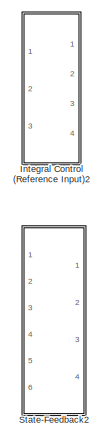
[diagram: root canvas - part 1/5, top left region]
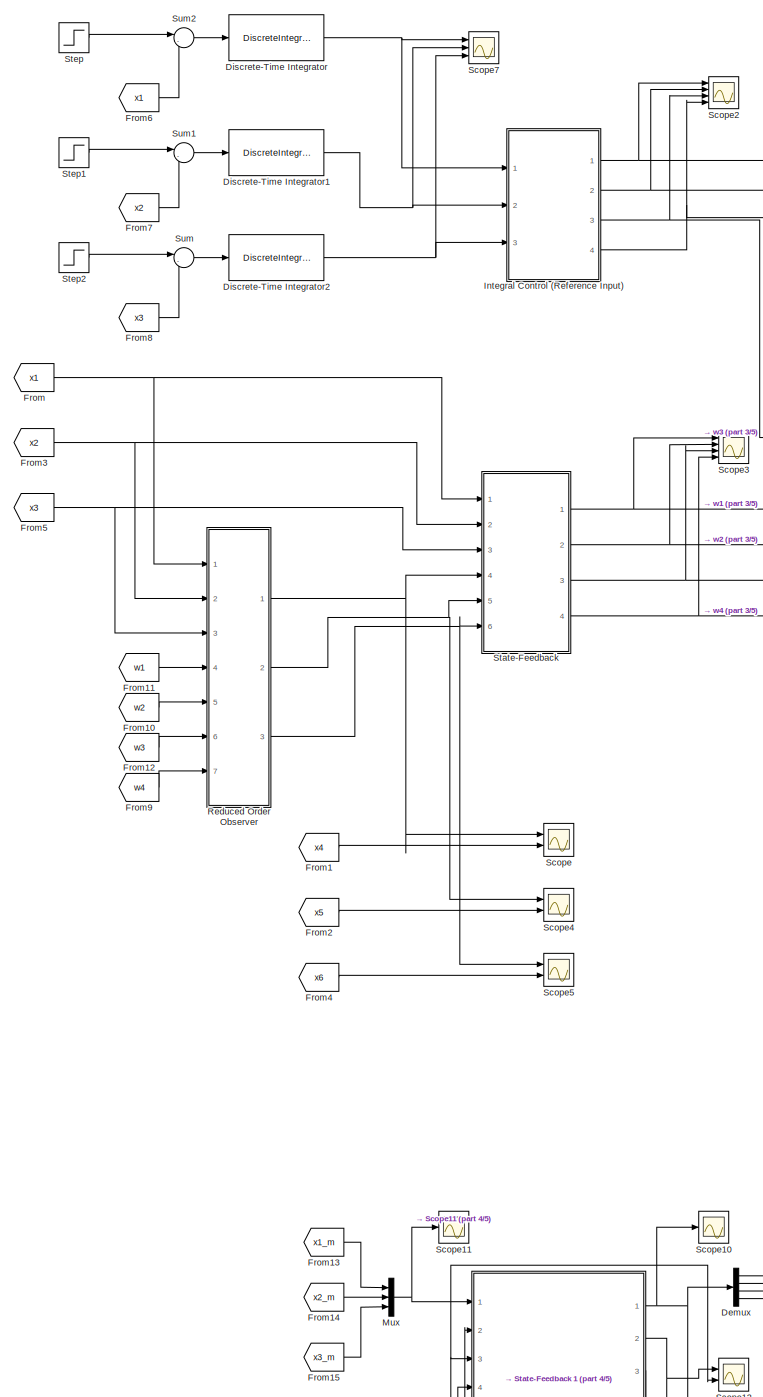
[diagram: root canvas - part 2/5, left side, full height]
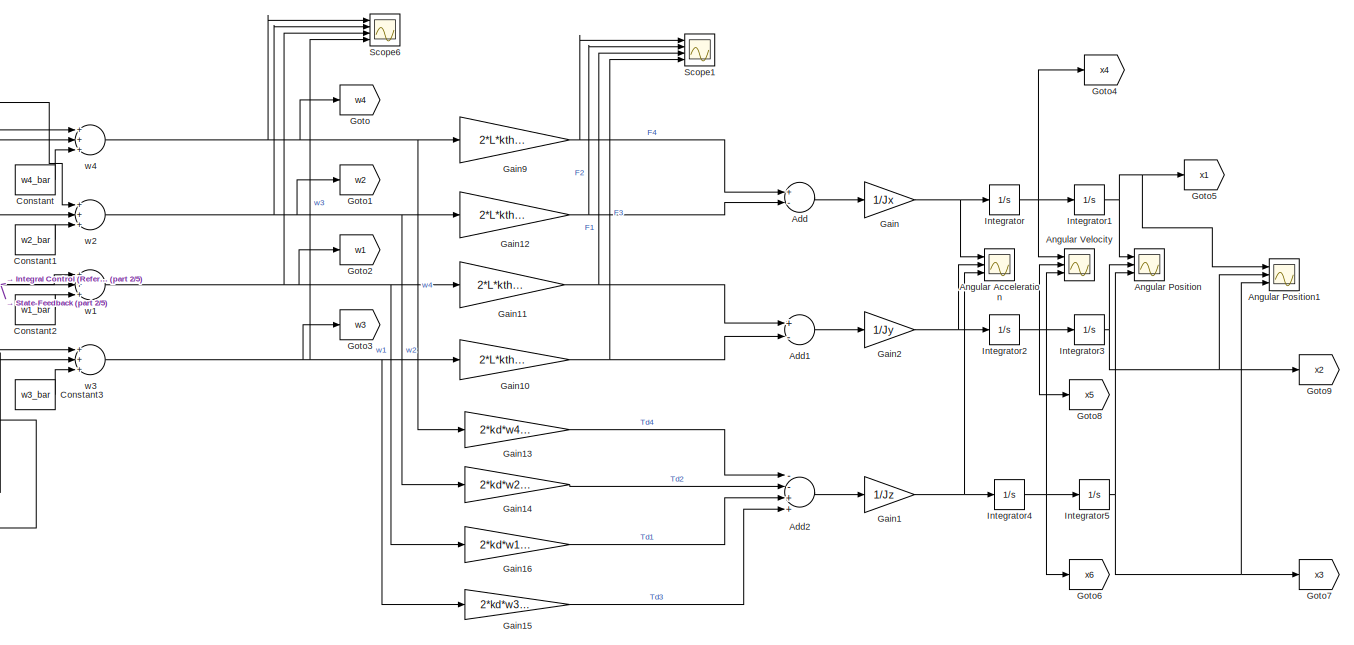
[diagram: root canvas - part 3/5, top right region]
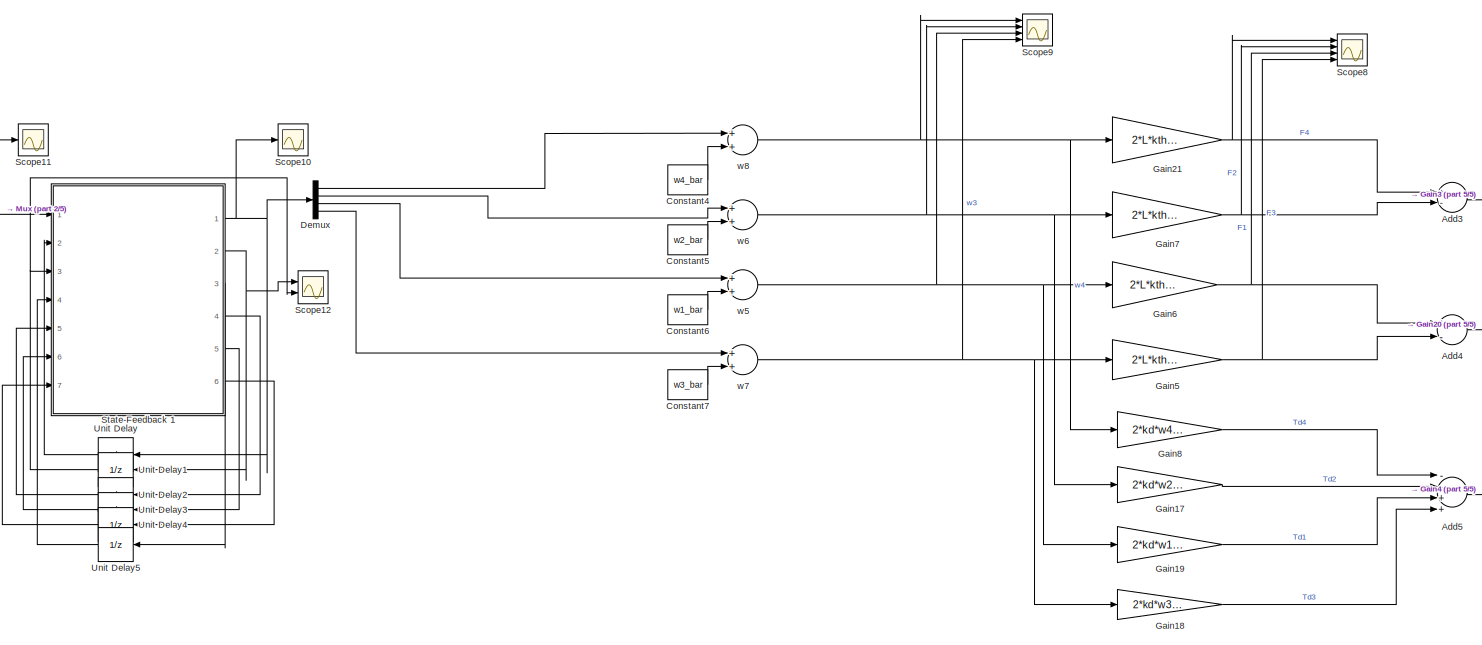
[diagram: root canvas - part 4/5, bottom center region]
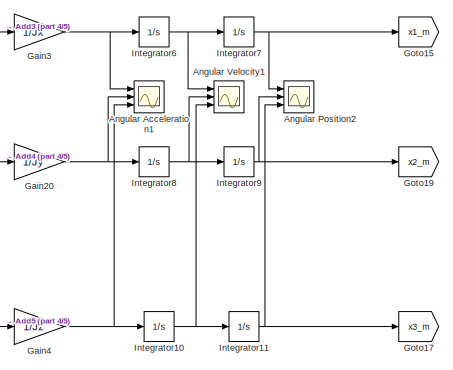
[diagram: root canvas - part 5/5, bottom right region]
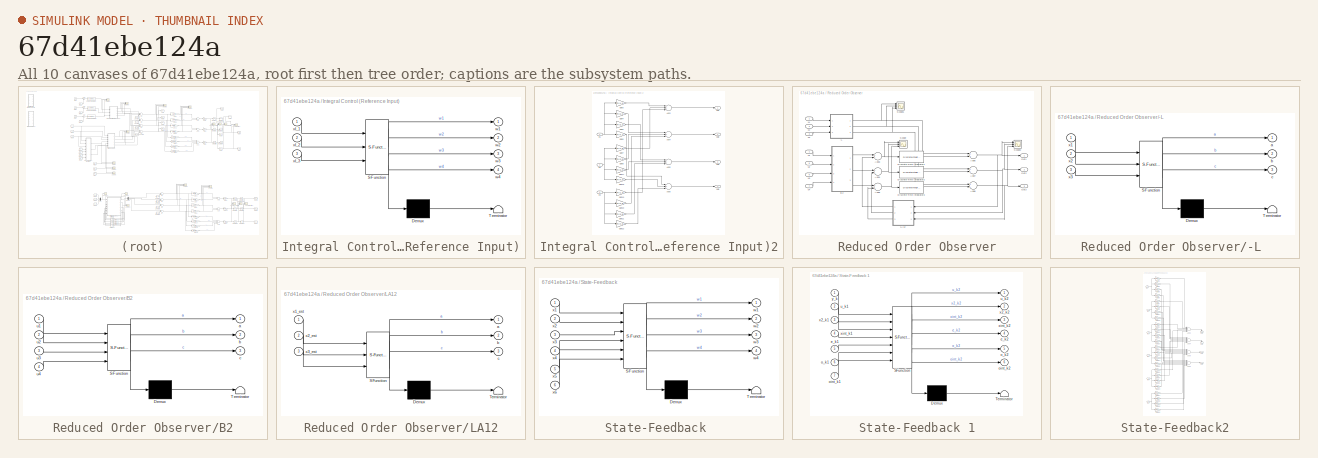
[diagram: thumbnail index - all 10 canvases of the model, root first then tree order]
MODEL slx_67d41ebe124a
KIND model
CONFIG AbsTol = auto
CONFIG FixedStep = auto
CONFIG MaxStep = auto
CONFIG MinStep = auto
CONFIG RelTol = 1e-3
CONFIG SampleTimeConstraint = Unconstrained
CONFIG Solver = VariableStepAuto
CONFIG SolverMode = Auto
CONFIG SolverName = VariableStepAuto
CONFIG StartTime = 0.0
CONFIG StopTime = 20
BLOCK [Sum] Add
  Commented = on
  InputSameDT = off
  Inputs = +-
  OutDataTypeStr = Inherit: Inherit via internal rule
  Ports = [2, 1]
  SaturateOnIntegerOverflow = off
BLOCK [Sum] Add1
  Commented = on
  InputSameDT = off
  Inputs = +-
  OutDataTypeStr = Inherit: Inherit via internal rule
  Ports = [2, 1]
  SaturateOnIntegerOverflow = off
BLOCK [Sum] Add2
  Commented = on
  InputSameDT = off
  Inputs = --++
  OutDataTypeStr = Inherit: Inherit via internal rule
  Ports = [4, 1]
  SaturateOnIntegerOverflow = off
BLOCK [Sum] Add3
  InputSameDT = off
  Inputs = +-
  OutDataTypeStr = Inherit: Inherit via internal rule
  Ports = [2, 1]
  SaturateOnIntegerOverflow = off
BLOCK [Sum] Add4
  InputSameDT = off
  Inputs = +-
  OutDataTypeStr = Inherit: Inherit via internal rule
  Ports = [2, 1]
  SaturateOnIntegerOverflow = off
BLOCK [Sum] Add5
  InputSameDT = off
  Inputs = --++
  OutDataTypeStr = Inherit: Inherit via internal rule
  Ports = [4, 1]
  SaturateOnIntegerOverflow = off
BLOCK [Scope] Angular Acceleration
  Commented = on
  NumInputPorts = 3
  Ports = [3]
  ScopeSpecificationString = Simulink.scopes.TimeScopeBlockCfg('CurrentConfiguration', extmgr.ConfigurationSet(extmgr.Configuration('Core','General UI',true),extmgr.Configuration('Core','Source UI',true),extmgr.Configuration('Sources','WiredSimulink',true,'DataLoggingVariableName','ScopeData3','DataLoggingLimitDataPoints',true,'DataLoggingSaveFormat','Array','DataLoggingDecimation','1','DataLoggingDecimateData',true),extmgr.C...<+1535ch>
BLOCK [Scope] Angular Acceleration1
  NumInputPorts = 3
  Ports = [3]
  ScopeSpecificationString = C++SS(StrPVP('SaveName','ScopeData4'))
BLOCK [Scope] Angular Position
  Commented = on
  NumInputPorts = 3
  Ports = [3]
  ScopeSpecificationString = Simulink.scopes.TimeScopeBlockCfg('CurrentConfiguration', extmgr.ConfigurationSet(extmgr.Configuration('Core','General UI',true),extmgr.Configuration('Core','Source UI',true),extmgr.Configuration('Sources','WiredSimulink',true,'DataLoggingVariableName','ScopeData1','DataLoggingSaveFormat','Array','DataLoggingDecimation','1','DataLoggingDecimateData',true),extmgr.Configuration('Visuals','Time Domai...<+1579ch>
BLOCK [Scope] Angular Position1
  Commented = on
  NumInputPorts = 3
  Ports = [3]
  ScopeSpecificationString = Simulink.scopes.TimeScopeBlockCfg('CurrentConfiguration', extmgr.ConfigurationSet(extmgr.Configuration('Core','General UI',true),extmgr.Configuration('Core','Source UI',true),extmgr.Configuration('Sources','WiredSimulink',true,'DataLoggingVariableName','ScopeData1','DataLoggingSaveFormat','Array','DataLoggingDecimation','1','DataLoggingDecimateData',true),extmgr.Configuration('Visuals','Time Domai...<+1585ch>
BLOCK [Scope] Angular Position2
  NumInputPorts = 3
  Ports = [3]
  ScopeSpecificationString = Simulink.scopes.TimeScopeBlockCfg('CurrentConfiguration', extmgr.ConfigurationSet(extmgr.Configuration('Core','General UI',true),extmgr.Configuration('Core','Source UI',true),extmgr.Configuration('Sources','WiredSimulink',true,'DataLoggingVariableName','ScopeData1'),extmgr.Configuration('Visuals','Time Domain',true,'SerializedDisplays',{struct('MinYLimReal','-76992271705441440000000000000000000000...<+2184ch>
BLOCK [Scope] Angular Velocity
  Commented = on
  NumInputPorts = 3
  Ports = [3]
  ScopeSpecificationString = Simulink.scopes.TimeScopeBlockCfg('CurrentConfiguration', extmgr.ConfigurationSet(extmgr.Configuration('Core','General UI',true),extmgr.Configuration('Core','Source UI',true),extmgr.Configuration('Sources','WiredSimulink',true,'DataLoggingVariableName','ScopeData2','DataLoggingLimitDataPoints',true,'DataLoggingSaveFormat','Array','DataLoggingDecimation','1','DataLoggingDecimateData',true),extmgr.C...<+3052ch>
BLOCK [Scope] Angular Velocity1
  NumInputPorts = 3
  Ports = [3]
  ScopeSpecificationString = C++SS(StrPVP('SaveName','ScopeData3'))
BLOCK [Constant] Constant
  Commented = on
  Value = w4_bar
BLOCK [Constant] Constant1
  Commented = on
  Value = w2_bar
BLOCK [Constant] Constant2
  Commented = on
  Value = w1_bar
BLOCK [Constant] Constant3
  Commented = on
  Value = w3_bar
BLOCK [Constant] Constant4
  Value = w4_bar
BLOCK [Constant] Constant5
  Value = w2_bar
BLOCK [Constant] Constant6
  Value = w1_bar
BLOCK [Constant] Constant7
  Value = w3_bar
BLOCK [Demux] Demux
  DisplayOption = bar
  Ports = [1, 4]
BLOCK [DiscreteIntegrator] Discrete-Time Integrator
  Commented = on
  ICPrevOutput = DiscIntNeverNeededParam
  ICPrevScaledInput = DiscIntNeverNeededParam
  InitialConditionSetting = State (most efficient)
  IntegratorMethod = Integration: Trapezoidal
  Ports = [1, 1]
  SampleTime = 0.05
  gainval = 1
BLOCK [DiscreteIntegrator] Discrete-Time Integrator1
  Commented = on
  ICPrevOutput = DiscIntNeverNeededParam
  ICPrevScaledInput = DiscIntNeverNeededParam
  InitialConditionSetting = State (most efficient)
  IntegratorMethod = Integration: Trapezoidal
  Ports = [1, 1]
  SampleTime = 0.05
  gainval = 1
BLOCK [DiscreteIntegrator] Discrete-Time Integrator2
  Commented = on
  ICPrevOutput = DiscIntNeverNeededParam
  ICPrevScaledInput = DiscIntNeverNeededParam
  InitialConditionSetting = State (most efficient)
  IntegratorMethod = Integration: Trapezoidal
  Ports = [1, 1]
  SampleTime = 0.05
  gainval = 1
BLOCK [From] From
  Commented = on
  GotoTag = x1
BLOCK [From] From1
  Commented = on
  GotoTag = x4
BLOCK [From] From10
  Commented = on
  GotoTag = w2
BLOCK [From] From11
  Commented = on
  GotoTag = w1
BLOCK [From] From12
  Commented = on
  GotoTag = w3
BLOCK [From] From13
  GotoTag = x1_m
BLOCK [From] From14
  GotoTag = x2_m
BLOCK [From] From15
  GotoTag = x3_m
BLOCK [From] From2
  Commented = on
  GotoTag = x5
BLOCK [From] From3
  Commented = on
  GotoTag = x2
BLOCK [From] From4
  Commented = on
  GotoTag = x6
BLOCK [From] From5
  Commented = on
  GotoTag = x3
BLOCK [From] From6
  Commented = on
  GotoTag = x1
BLOCK [From] From7
  Commented = on
  GotoTag = x2
BLOCK [From] From8
  Commented = on
  GotoTag = x3
BLOCK [From] From9
  Commented = on
  GotoTag = w4
BLOCK [Gain] Gain
  Commented = on
  Gain = 1/Jx
  OutDataTypeStr = Inherit: Inherit via internal rule
  ParamDataTypeStr = Inherit: Inherit via internal rule
  SaturateOnIntegerOverflow = off
BLOCK [Gain] Gain1
  Commented = on
  Gain = 1/Jz
  OutDataTypeStr = Inherit: Inherit via internal rule
  ParamDataTypeStr = Inherit: Inherit via internal rule
  SaturateOnIntegerOverflow = off
BLOCK [Gain] Gain10
  Commented = on
  Gain = 2*L*kth*w3_bar
  OutDataTypeStr = Inherit: Inherit via internal rule
  ParamDataTypeStr = Inherit: Inherit via internal rule
  SaturateOnIntegerOverflow = off
BLOCK [Gain] Gain11
  Commented = on
  Gain = 2*L*kth*w1_bar
  OutDataTypeStr = Inherit: Inherit via internal rule
  ParamDataTypeStr = Inherit: Inherit via internal rule
  SaturateOnIntegerOverflow = off
BLOCK [Gain] Gain12
  Commented = on
  Gain = 2*L*kth*w2_bar
  OutDataTypeStr = Inherit: Inherit via internal rule
  ParamDataTypeStr = Inherit: Inherit via internal rule
  SaturateOnIntegerOverflow = off
BLOCK [Gain] Gain13
  Commented = on
  Gain = 2*kd*w4_bar
  OutDataTypeStr = Inherit: Inherit via internal rule
  ParamDataTypeStr = Inherit: Inherit via internal rule
  SaturateOnIntegerOverflow = off
BLOCK [Gain] Gain14
  Commented = on
  Gain = 2*kd*w2_bar
  OutDataTypeStr = Inherit: Inherit via internal rule
  ParamDataTypeStr = Inherit: Inherit via internal rule
  SaturateOnIntegerOverflow = off
BLOCK [Gain] Gain15
  Commented = on
  Gain = 2*kd*w3_bar
  OutDataTypeStr = Inherit: Inherit via internal rule
  ParamDataTypeStr = Inherit: Inherit via internal rule
  SaturateOnIntegerOverflow = off
BLOCK [Gain] Gain16
  Commented = on
  Gain = 2*kd*w1_bar
  OutDataTypeStr = Inherit: Inherit via internal rule
  ParamDataTypeStr = Inherit: Inherit via internal rule
  SaturateOnIntegerOverflow = off
BLOCK [Gain] Gain17
  Gain = 2*kd*w2_bar
  OutDataTypeStr = Inherit: Inherit via internal rule
  ParamDataTypeStr = Inherit: Inherit via internal rule
  SaturateOnIntegerOverflow = off
BLOCK [Gain] Gain18
  Gain = 2*kd*w3_bar
  OutDataTypeStr = Inherit: Inherit via internal rule
  ParamDataTypeStr = Inherit: Inherit via internal rule
  SaturateOnIntegerOverflow = off
BLOCK [Gain] Gain19
  Gain = 2*kd*w1_bar
  OutDataTypeStr = Inherit: Inherit via internal rule
  ParamDataTypeStr = Inherit: Inherit via internal rule
  SaturateOnIntegerOverflow = off
BLOCK [Gain] Gain2
  Commented = on
  Gain = 1/Jy
  OutDataTypeStr = Inherit: Inherit via internal rule
  ParamDataTypeStr = Inherit: Inherit via internal rule
  SaturateOnIntegerOverflow = off
BLOCK [Gain] Gain20
  Gain = 1/Jy
  OutDataTypeStr = Inherit: Inherit via internal rule
  ParamDataTypeStr = Inherit: Inherit via internal rule
  SaturateOnIntegerOverflow = off
BLOCK [Gain] Gain21
  Gain = 2*L*kth*w4_bar
  OutDataTypeStr = Inherit: Inherit via internal rule
  ParamDataTypeStr = Inherit: Inherit via internal rule
  SaturateOnIntegerOverflow = off
BLOCK [Gain] Gain3
  Gain = 1/Jx
  OutDataTypeStr = Inherit: Inherit via internal rule
  ParamDataTypeStr = Inherit: Inherit via internal rule
  SaturateOnIntegerOverflow = off
BLOCK [Gain] Gain4
  Gain = 1/Jz
  OutDataTypeStr = Inherit: Inherit via internal rule
  ParamDataTypeStr = Inherit: Inherit via internal rule
  SaturateOnIntegerOverflow = off
BLOCK [Gain] Gain5
  Gain = 2*L*kth*w3_bar
  OutDataTypeStr = Inherit: Inherit via internal rule
  ParamDataTypeStr = Inherit: Inherit via internal rule
  SaturateOnIntegerOverflow = off
BLOCK [Gain] Gain6
  Gain = 2*L*kth*w1_bar
  OutDataTypeStr = Inherit: Inherit via internal rule
  ParamDataTypeStr = Inherit: Inherit via internal rule
  SaturateOnIntegerOverflow = off
BLOCK [Gain] Gain7
  Gain = 2*L*kth*w2_bar
  OutDataTypeStr = Inherit: Inherit via internal rule
  ParamDataTypeStr = Inherit: Inherit via internal rule
  SaturateOnIntegerOverflow = off
BLOCK [Gain] Gain8
  Gain = 2*kd*w4_bar
  OutDataTypeStr = Inherit: Inherit via internal rule
  ParamDataTypeStr = Inherit: Inherit via internal rule
  SaturateOnIntegerOverflow = off
BLOCK [Gain] Gain9
  Commented = on
  Gain = 2*L*kth*w4_bar
  OutDataTypeStr = Inherit: Inherit via internal rule
  ParamDataTypeStr = Inherit: Inherit via internal rule
  SaturateOnIntegerOverflow = off
BLOCK [Goto] Goto
  Commented = on
  GotoTag = w4
BLOCK [Goto] Goto1
  Commented = on
  GotoTag = w2
BLOCK [Goto] Goto15
  GotoTag = x1_m
BLOCK [Goto] Goto17
  GotoTag = x3_m
BLOCK [Goto] Goto19
  GotoTag = x2_m
BLOCK [Goto] Goto2
  Commented = on
  GotoTag = w1
BLOCK [Goto] Goto3
  Commented = on
  GotoTag = w3
BLOCK [Goto] Goto4
  Commented = on
  GotoTag = x4
BLOCK [Goto] Goto5
  Commented = on
  GotoTag = x1
BLOCK [Goto] Goto6
  Commented = on
  GotoTag = x6
BLOCK [Goto] Goto7
  Commented = on
  GotoTag = x3
BLOCK [Goto] Goto8
  Commented = on
  GotoTag = x5
BLOCK [Goto] Goto9
  Commented = on
  GotoTag = x2
BLOCK [SubSystem] Integral Control (Reference Input)
  Commented = on
  ErrorFcn = Stateflow.Translate.translate
  PermitHierarchicalResolution = ExplicitOnly
  Ports = [3, 4]
  RequestExecContextInheritance = off
  SFBlockType = MATLAB Function
  TreatAsAtomicUnit = on
  Variant = off
BLOCK [Demux] Integral Control (Reference Input)/ Demux 
  Outputs = 1
  Ports = [1, 1]
BLOCK [S-Function] Integral Control (Reference Input)/ SFunction 
  EnableBusSupport = on
  FunctionName = sf_sfun
  Parameters = FI
  PortCounts = [3 5]
  Ports = [3, 5]
  SFunctionDeploymentMode = off
  Tag = Stateflow S-Function state_feedback 2
BLOCK [Terminator] Integral Control (Reference Input)/ Terminator 
BLOCK [Outport] Integral Control (Reference Input)/w1
  IconDisplay = Port number
BLOCK [Outport] Integral Control (Reference Input)/w2
  IconDisplay = Port number
  Port = 2
BLOCK [Outport] Integral Control (Reference Input)/w3
  IconDisplay = Port number
  Port = 3
BLOCK [Outport] Integral Control (Reference Input)/w4
  IconDisplay = Port number
  Port = 4
BLOCK [Inport] Integral Control (Reference Input)/xI_1
  IconDisplay = Port number
BLOCK [Inport] Integral Control (Reference Input)/xI_2
  IconDisplay = Port number
  Port = 2
BLOCK [Inport] Integral Control (Reference Input)/xI_3
  IconDisplay = Port number
  Port = 3
BLOCK [SubSystem] Integral Control (Reference Input)2
  Commented = on
  Ports = [3, 4]
  RequestExecContextInheritance = off
  Variant = off
BLOCK [Sum] Integral Control (Reference Input)2/Add3
  InputSameDT = off
  Inputs = +++
  OutDataTypeStr = Inherit: Inherit via internal rule
  Ports = [3, 1]
  SaturateOnIntegerOverflow = off
BLOCK [Sum] Integral Control (Reference Input)2/Add4
  InputSameDT = off
  Inputs = +++
  OutDataTypeStr = Inherit: Inherit via internal rule
  Ports = [3, 1]
  SaturateOnIntegerOverflow = off
BLOCK [Sum] Integral Control (Reference Input)2/Add5
  InputSameDT = off
  Inputs = +++
  OutDataTypeStr = Inherit: Inherit via internal rule
  Ports = [3, 1]
  SaturateOnIntegerOverflow = off
BLOCK [Sum] Integral Control (Reference Input)2/Add6
  InputSameDT = off
  Inputs = +++
  OutDataTypeStr = Inherit: Inherit via internal rule
  Ports = [3, 1]
  SaturateOnIntegerOverflow = off
BLOCK [Gain] Integral Control (Reference Input)2/Gain17
  Gain = FI(3,2)
  OutDataTypeStr = Inherit: Inherit via internal rule
  ParamDataTypeStr = Inherit: Inherit via internal rule
  SaturateOnIntegerOverflow = off
BLOCK [Gain] Integral Control (Reference Input)2/Gain18
  Gain = FI(4,2)
  OutDataTypeStr = Inherit: Inherit via internal rule
  ParamDataTypeStr = Inherit: Inherit via internal rule
  SaturateOnIntegerOverflow = off
BLOCK [Gain] Integral Control (Reference Input)2/Gain19
  Gain = FI(1,3)
  OutDataTypeStr = Inherit: Inherit via internal rule
  ParamDataTypeStr = Inherit: Inherit via internal rule
  SaturateOnIntegerOverflow = off
BLOCK [Gain] Integral Control (Reference Input)2/Gain20
  Gain = FI(2,3)
  OutDataTypeStr = Inherit: Inherit via internal rule
  ParamDataTypeStr = Inherit: Inherit via internal rule
  SaturateOnIntegerOverflow = off
BLOCK [Gain] Integral Control (Reference Input)2/Gain21
  Gain = FI(3,3)
  OutDataTypeStr = Inherit: Inherit via internal rule
  ParamDataTypeStr = Inherit: Inherit via internal rule
  SaturateOnIntegerOverflow = off
BLOCK [Gain] Integral Control (Reference Input)2/Gain22
  Gain = FI(4,3)
  OutDataTypeStr = Inherit: Inherit via internal rule
  ParamDataTypeStr = Inherit: Inherit via internal rule
  SaturateOnIntegerOverflow = off
BLOCK [Gain] Integral Control (Reference Input)2/Gain3
  Gain = FI(1,1)
  OutDataTypeStr = Inherit: Inherit via internal rule
  ParamDataTypeStr = Inherit: Inherit via internal rule
  SaturateOnIntegerOverflow = off
BLOCK [Gain] Integral Control (Reference Input)2/Gain4
  Gain = FI(2,1)
  OutDataTypeStr = Inherit: Inherit via internal rule
  ParamDataTypeStr = Inherit: Inherit via internal rule
  SaturateOnIntegerOverflow = off
BLOCK [Gain] Integral Control (Reference Input)2/Gain5
  Gain = FI(3,1)
  OutDataTypeStr = Inherit: Inherit via internal rule
  ParamDataTypeStr = Inherit: Inherit via internal rule
  SaturateOnIntegerOverflow = off
BLOCK [Gain] Integral Control (Reference Input)2/Gain6
  Gain = FI(4,1)
  OutDataTypeStr = Inherit: Inherit via internal rule
  ParamDataTypeStr = Inherit: Inherit via internal rule
  SaturateOnIntegerOverflow = off
BLOCK [Gain] Integral Control (Reference Input)2/Gain7
  Gain = FI(1,2)
  OutDataTypeStr = Inherit: Inherit via internal rule
  ParamDataTypeStr = Inherit: Inherit via internal rule
  SaturateOnIntegerOverflow = off
BLOCK [Gain] Integral Control (Reference Input)2/Gain8
  Gain = FI(2,2)
  OutDataTypeStr = Inherit: Inherit via internal rule
  ParamDataTypeStr = Inherit: Inherit via internal rule
  SaturateOnIntegerOverflow = off
BLOCK [Inport] Integral Control (Reference Input)2/In1
  IconDisplay = Port number
BLOCK [Inport] Integral Control (Reference Input)2/In2
  IconDisplay = Port number
  Port = 2
BLOCK [Inport] Integral Control (Reference Input)2/In3
  IconDisplay = Port number
  Port = 3
BLOCK [Outport] Integral Control (Reference Input)2/Out1
  IconDisplay = Port number
BLOCK [Outport] Integral Control (Reference Input)2/Out2
  IconDisplay = Port number
  Port = 2
BLOCK [Outport] Integral Control (Reference Input)2/Out3
  IconDisplay = Port number
  Port = 3
BLOCK [Outport] Integral Control (Reference Input)2/Out4
  IconDisplay = Port number
  Port = 4
BLOCK [Integrator] Integrator
  Commented = on
  Ports = [1, 1]
BLOCK [Integrator] Integrator1
  Commented = on
  InitialCondition = 0.4
  Ports = [1, 1]
BLOCK [Integrator] Integrator10
  Ports = [1, 1]
BLOCK [Integrator] Integrator11
  Ports = [1, 1]
BLOCK [Integrator] Integrator2
  Commented = on
  Ports = [1, 1]
BLOCK [Integrator] Integrator3
  Commented = on
  Ports = [1, 1]
BLOCK [Integrator] Integrator4
  Commented = on
  Ports = [1, 1]
BLOCK [Integrator] Integrator5
  Commented = on
  Ports = [1, 1]
BLOCK [Integrator] Integrator6
  Ports = [1, 1]
BLOCK [Integrator] Integrator7
  InitialCondition = 0.005
  Ports = [1, 1]
BLOCK [Integrator] Integrator8
  Ports = [1, 1]
BLOCK [Integrator] Integrator9
  Ports = [1, 1]
BLOCK [Mux] Mux
  DisplayOption = bar
  Inputs = 3
  Ports = [3, 1]
BLOCK [SubSystem] Reduced Order Observer
  Commented = on
  Ports = [7, 3]
  RequestExecContextInheritance = off
  Variant = off
BLOCK [SubSystem] Reduced Order Observer/-L 
  ErrorFcn = Stateflow.Translate.translate
  PermitHierarchicalResolution = ExplicitOnly
  Ports = [3, 3]
  RequestExecContextInheritance = off
  SFBlockType = MATLAB Function
  TreatAsAtomicUnit = on
  Variant = off
BLOCK [Demux] Reduced Order Observer/-L / Demux 
  Outputs = 1
  Ports = [1, 1]
BLOCK [S-Function] Reduced Order Observer/-L / SFunction 
  EnableBusSupport = on
  FunctionName = sf_sfun
  Parameters = Lobs
  PortCounts = [3 4]
  Ports = [3, 4]
  SFunctionDeploymentMode = off
  Tag = Stateflow S-Function state_feedback 3
BLOCK [Terminator] Reduced Order Observer/-L / Terminator 
BLOCK [Outport] Reduced Order Observer/-L /a
  IconDisplay = Port number
BLOCK [Outport] Reduced Order Observer/-L /b
  IconDisplay = Port number
  Port = 2
BLOCK [Outport] Reduced Order Observer/-L /c
  IconDisplay = Port number
  Port = 3
BLOCK [Inport] Reduced Order Observer/-L /x1
  IconDisplay = Port number
BLOCK [Inport] Reduced Order Observer/-L /x2
  IconDisplay = Port number
  Port = 2
BLOCK [Inport] Reduced Order Observer/-L /x3
  IconDisplay = Port number
  Port = 3
BLOCK [Sum] Reduced Order Observer/Add3
  InputSameDT = off
  Inputs = 2
  OutDataTypeStr = Inherit: Inherit via internal rule
  Ports = [2, 1]
  SaturateOnIntegerOverflow = off
BLOCK [Sum] Reduced Order Observer/Add4
  InputSameDT = off
  Inputs = 2
  OutDataTypeStr = Inherit: Inherit via internal rule
  Ports = [2, 1]
  SaturateOnIntegerOverflow = off
BLOCK [Sum] Reduced Order Observer/Add5
  InputSameDT = off
  Inputs = 2
  OutDataTypeStr = Inherit: Inherit via internal rule
  Ports = [2, 1]
  SaturateOnIntegerOverflow = off
BLOCK [Sum] Reduced Order Observer/Add6
  InputSameDT = off
  Inputs = 2
  OutDataTypeStr = Inherit: Inherit via internal rule
  Ports = [2, 1]
  SaturateOnIntegerOverflow = off
BLOCK [Sum] Reduced Order Observer/Add7
  InputSameDT = off
  Inputs = 2
  OutDataTypeStr = Inherit: Inherit via internal rule
  Ports = [2, 1]
  SaturateOnIntegerOverflow = off
BLOCK [Sum] Reduced Order Observer/Add8
  InputSameDT = off
  Inputs = 2
  OutDataTypeStr = Inherit: Inherit via internal rule
  Ports = [2, 1]
  SaturateOnIntegerOverflow = off
BLOCK [SubSystem] Reduced Order Observer/B2
  ErrorFcn = Stateflow.Translate.translate
  PermitHierarchicalResolution = ExplicitOnly
  Ports = [4, 3]
  RequestExecContextInheritance = off
  SFBlockType = MATLAB Function
  TreatAsAtomicUnit = on
  Variant = off
BLOCK [Demux] Reduced Order Observer/B2/ Demux 
  Outputs = 1
  Ports = [1, 1]
BLOCK [S-Function] Reduced Order Observer/B2/ SFunction 
  EnableBusSupport = on
  FunctionName = sf_sfun
  Parameters = B2
  PortCounts = [4 4]
  Ports = [4, 4]
  SFunctionDeploymentMode = off
  Tag = Stateflow S-Function state_feedback 4
BLOCK [Terminator] Reduced Order Observer/B2/ Terminator 
BLOCK [Outport] Reduced Order Observer/B2/a
  IconDisplay = Port number
BLOCK [Outport] Reduced Order Observer/B2/b
  IconDisplay = Port number
  Port = 2
BLOCK [Outport] Reduced Order Observer/B2/c
  IconDisplay = Port number
  Port = 3
BLOCK [Inport] Reduced Order Observer/B2/u1
  IconDisplay = Port number
BLOCK [Inport] Reduced Order Observer/B2/u2
  IconDisplay = Port number
  Port = 2
BLOCK [Inport] Reduced Order Observer/B2/u3
  IconDisplay = Port number
  Port = 3
BLOCK [Inport] Reduced Order Observer/B2/u4
  IconDisplay = Port number
  Port = 4
BLOCK [DiscreteIntegrator] Reduced Order Observer/Discrete-Time Integrator1
  ICPrevOutput = DiscIntNeverNeededParam
  ICPrevScaledInput = DiscIntNeverNeededParam
  InitialConditionSetting = State (most efficient)
  IntegratorMethod = Integration: Trapezoidal
  Ports = [1, 1]
  SampleTime = 0.05
  gainval = 1
BLOCK [DiscreteIntegrator] Reduced Order Observer/Discrete-Time Integrator2
  ICPrevOutput = DiscIntNeverNeededParam
  ICPrevScaledInput = DiscIntNeverNeededParam
  InitialConditionSetting = State (most efficient)
  IntegratorMethod = Integration: Trapezoidal
  Ports = [1, 1]
  SampleTime = 0.05
  gainval = 1
BLOCK [DiscreteIntegrator] Reduced Order Observer/Discrete-Time Integrator3
  ICPrevOutput = DiscIntNeverNeededParam
  ICPrevScaledInput = DiscIntNeverNeededParam
  InitialConditionSetting = State (most efficient)
  IntegratorMethod = Integration: Trapezoidal
  Ports = [1, 1]
  SampleTime = 0.05
  gainval = 1
BLOCK [SubSystem] Reduced Order Observer/LA12
  ErrorFcn = Stateflow.Translate.translate
  PermitHierarchicalResolution = ExplicitOnly
  Ports = [3, 3]
  RequestExecContextInheritance = off
  SFBlockType = MATLAB Function
  TreatAsAtomicUnit = on
  Variant = off
BLOCK [Demux] Reduced Order Observer/LA12/ Demux 
  Outputs = 1
  Ports = [1, 1]
BLOCK [S-Function] Reduced Order Observer/LA12/ SFunction 
  EnableBusSupport = on
  FunctionName = sf_sfun
  Parameters = A12,Lobs
  PortCounts = [3 4]
  Ports = [3, 4]
  SFunctionDeploymentMode = off
  Tag = Stateflow S-Function state_feedback 5
BLOCK [Terminator] Reduced Order Observer/LA12/ Terminator 
BLOCK [Outport] Reduced Order Observer/LA12/a
  IconDisplay = Port number
BLOCK [Outport] Reduced Order Observer/LA12/b
  IconDisplay = Port number
  Port = 2
BLOCK [Outport] Reduced Order Observer/LA12/c
  IconDisplay = Port number
  Port = 3
BLOCK [Inport] Reduced Order Observer/LA12/x1_est
  IconDisplay = Port number
BLOCK [Inport] Reduced Order Observer/LA12/x2_est
  IconDisplay = Port number
  Port = 2
BLOCK [Inport] Reduced Order Observer/LA12/x3_est
  IconDisplay = Port number
  Port = 3
BLOCK [Outport] Reduced Order Observer/Out1
  IconDisplay = Port number
BLOCK [Outport] Reduced Order Observer/Out2
  IconDisplay = Port number
  Port = 2
BLOCK [Outport] Reduced Order Observer/Out3
  IconDisplay = Port number
  Port = 3
BLOCK [Scope] Reduced Order Observer/Scope
  NumInputPorts = 3
  Ports = [3]
  ScopeSpecificationString = Simulink.scopes.TimeScopeBlockCfg('CurrentConfiguration', extmgr.ConfigurationSet(extmgr.Configuration('Core','General UI',true),extmgr.Configuration('Core','Source UI',true),extmgr.Configuration('Sources','WiredSimulink',true,'DataLoggingVariableName','ScopeData2'),extmgr.Configuration('Visuals','Time Domain',true,'SerializedDisplays',{struct('MinYLimReal','-0.00927','MaxYLimReal','0.08194','YLab...<+1431ch>
BLOCK [Scope] Reduced Order Observer/Scope1
  NumInputPorts = 3
  Ports = [3]
  ScopeSpecificationString = Simulink.scopes.TimeScopeBlockCfg('CurrentConfiguration', extmgr.ConfigurationSet(extmgr.Configuration('Core','General UI',true),extmgr.Configuration('Core','Source UI',true),extmgr.Configuration('Sources','WiredSimulink',true,'DataLoggingVariableName','ScopeData3'),extmgr.Configuration('Visuals','Time Domain',true,'SerializedDisplays',{struct('MinYLimReal','-0.00068','MaxYLimReal','0.00007','YLab...<+1434ch>
BLOCK [Scope] Reduced Order Observer/Scope2
  NumInputPorts = 3
  Ports = [3]
  ScopeSpecificationString = Simulink.scopes.TimeScopeBlockCfg('CurrentConfiguration', extmgr.ConfigurationSet(extmgr.Configuration('Core','General UI',true),extmgr.Configuration('Core','Source UI',true),extmgr.Configuration('Sources','WiredSimulink',true,'DataLoggingVariableName','ScopeData4'),extmgr.Configuration('Visuals','Time Domain',true,'SerializedDisplays',{struct('MinYLimReal','-0.18126','MaxYLimReal','1.47014','YLab...<+1430ch>
BLOCK [Inport] Reduced Order Observer/u1
  IconDisplay = Port number
  Port = 4
BLOCK [Inport] Reduced Order Observer/u2
  IconDisplay = Port number
  Port = 5
BLOCK [Inport] Reduced Order Observer/u3
  IconDisplay = Port number
  Port = 6
BLOCK [Inport] Reduced Order Observer/u4
  IconDisplay = Port number
  Port = 7
BLOCK [Inport] Reduced Order Observer/x1
  IconDisplay = Port number
BLOCK [Inport] Reduced Order Observer/x2
  IconDisplay = Port number
  Port = 2
BLOCK [Inport] Reduced Order Observer/x3
  IconDisplay = Port number
  Port = 3
BLOCK [Scope] Scope
  Commented = on
  NumInputPorts = 2
  Ports = [2]
  ScopeSpecificationString = Simulink.scopes.TimeScopeBlockCfg('CurrentConfiguration', extmgr.ConfigurationSet(extmgr.Configuration('Core','General UI',true),extmgr.Configuration('Core','Source UI',true),extmgr.Configuration('Sources','WiredSimulink',true,'DataLoggingVariableName','ScopeData3'),extmgr.Configuration('Visuals','Time Domain',true,'SerializedDisplays',{struct('MinYLimReal','-8.23683','MaxYLimReal','4.70735','YLab...<+1450ch>
BLOCK [Scope] Scope1
  Commented = on
  NumInputPorts = 4
  Ports = [4]
  ScopeSpecificationString = Simulink.scopes.TimeScopeBlockCfg('CurrentConfiguration', extmgr.ConfigurationSet(extmgr.Configuration('Core','General UI',true),extmgr.Configuration('Core','Source UI',true),extmgr.Configuration('Sources','WiredSimulink',true),extmgr.Configuration('Visuals','Time Domain',true,'SerializedDisplays',{struct('MinYLimReal','-17825574068553026000000000000000000000000000000000000000000000000000000000000...<+3827ch>
BLOCK [Scope] Scope10
  Ports = [1]
  ScopeSpecificationString = Simulink.scopes.TimeScopeBlockCfg('CurrentConfiguration', extmgr.ConfigurationSet(extmgr.Configuration('Core','General UI',true),extmgr.Configuration('Core','Source UI',true),extmgr.Configuration('Sources','WiredSimulink',true,'DataLoggingVariableName','ScopeData2'),extmgr.Configuration('Visuals','Time Domain',true,'SerializedDisplays',{struct('MinYLimReal','-8072082844646035700000.00000','MaxYLim...<+1697ch>
BLOCK [Scope] Scope11
  Ports = [1]
  ScopeSpecificationString = Simulink.scopes.TimeScopeBlockCfg('CurrentConfiguration', extmgr.ConfigurationSet(extmgr.Configuration('Core','General UI',true),extmgr.Configuration('Core','Source UI',true),extmgr.Configuration('Sources','WiredSimulink',true,'DataLoggingVariableName','ScopeData7'),extmgr.Configuration('Visuals','Time Domain',true,'SerializedDisplays',{struct('MinYLimReal','-3030618436491701200.00000','MaxYLimRea...<+1545ch>
BLOCK [Scope] Scope12
  NumInputPorts = 2
  Ports = [2]
  ScopeSpecificationString = Simulink.scopes.TimeScopeBlockCfg('CurrentConfiguration', extmgr.ConfigurationSet(extmgr.Configuration('Core','General UI',true),extmgr.Configuration('Core','Source UI',true),extmgr.Configuration('Sources','WiredSimulink',true,'DataLoggingVariableName','ScopeData8'),extmgr.Configuration('Visuals','Time Domain',true,'SerializedDisplays',{struct('MinYLimReal','-22974948545188326000000000000000000000...<+2798ch>
BLOCK [Scope] Scope2
  Commented = on
  NumInputPorts = 4
  Ports = [4]
  ScopeSpecificationString = Simulink.scopes.TimeScopeBlockCfg('CurrentConfiguration', extmgr.ConfigurationSet(extmgr.Configuration('Core','General UI',true),extmgr.Configuration('Core','Source UI',true),extmgr.Configuration('Sources','WiredSimulink',true,'DataLoggingVariableName','ScopeData1'),extmgr.Configuration('Visuals','Time Domain',true,'SerializedDisplays',{struct('MinYLimReal','0.04346','MaxYLimReal','0.04401','YLabe...<+1617ch>
BLOCK [Scope] Scope3
  Commented = on
  NumInputPorts = 4
  Ports = [4]
  ScopeSpecificationString = Simulink.scopes.TimeScopeBlockCfg('CurrentConfiguration', extmgr.ConfigurationSet(extmgr.Configuration('Core','General UI',true),extmgr.Configuration('Core','Source UI',true),extmgr.Configuration('Sources','WiredSimulink',true,'DataLoggingVariableName','ScopeData2'),extmgr.Configuration('Visuals','Time Domain',true,'SerializedDisplays',{struct('MinYLimReal','-40925.95391','MaxYLimReal','63959.8741...<+2214ch>
BLOCK [Scope] Scope4
  Commented = on
  NumInputPorts = 2
  Ports = [2]
  ScopeSpecificationString = Simulink.scopes.TimeScopeBlockCfg('CurrentConfiguration', extmgr.ConfigurationSet(extmgr.Configuration('Core','General UI',true),extmgr.Configuration('Core','Source UI',true),extmgr.Configuration('Sources','WiredSimulink',true,'DataLoggingVariableName','ScopeData4','DataLoggingLimitDataPoints',true,'DataLoggingSaveFormat','Array','DataLoggingDecimation','1','DataLoggingDecimateData',true),extmgr.C...<+1522ch>
BLOCK [Scope] Scope5
  Commented = on
  NumInputPorts = 2
  Ports = [2]
  ScopeSpecificationString = Simulink.scopes.TimeScopeBlockCfg('CurrentConfiguration', extmgr.ConfigurationSet(extmgr.Configuration('Core','General UI',true),extmgr.Configuration('Core','Source UI',true),extmgr.Configuration('Sources','WiredSimulink',true,'DataLoggingVariableName','ScopeData5','DataLoggingSaveFormat','Array','DataLoggingDecimation','1','DataLoggingDecimateData',true),extmgr.Configuration('Visuals','Time Domai...<+1563ch>
BLOCK [Scope] Scope6
  Commented = on
  NumInputPorts = 4
  Ports = [4]
  ScopeSpecificationString = Simulink.scopes.TimeScopeBlockCfg('CurrentConfiguration', extmgr.ConfigurationSet(extmgr.Configuration('Core','General UI',true),extmgr.Configuration('Core','Source UI',true),extmgr.Configuration('Sources','WiredSimulink',true,'DataLoggingVariableName','ScopeData1'),extmgr.Configuration('Visuals','Time Domain',true,'SerializedDisplays',{struct('MinYLimReal','325.35933','MaxYLimReal','507.57513','Y...<+1513ch>
BLOCK [Scope] Scope7
  Commented = on
  NumInputPorts = 3
  Ports = [3]
  ScopeSpecificationString = Simulink.scopes.TimeScopeBlockCfg('CurrentConfiguration', extmgr.ConfigurationSet(extmgr.Configuration('Core','General UI',true),extmgr.Configuration('Core','Source UI',true),extmgr.Configuration('Sources','WiredSimulink',true,'DataLoggingVariableName','ScopeData1'),extmgr.Configuration('Visuals','Time Domain',true,'SerializedDisplays',{struct('MinYLimReal','-0.00112','MaxYLimReal','0.00012','YLab...<+1427ch>
BLOCK [Scope] Scope8
  NumInputPorts = 4
  Ports = [4]
  ScopeSpecificationString = C++SS(StrPVP('SaveName','ScopeData5'))
BLOCK [Scope] Scope9
  NumInputPorts = 4
  Ports = [4]
  ScopeSpecificationString = Simulink.scopes.TimeScopeBlockCfg('CurrentConfiguration', extmgr.ConfigurationSet(extmgr.Configuration('Core','General UI',true),extmgr.Configuration('Core','Source UI',true),extmgr.Configuration('Sources','WiredSimulink',true,'DataLoggingVariableName','ScopeData6'),extmgr.Configuration('Visuals','Time Domain',true,'SerializedDisplays',{struct('MinYLimReal','-403604141645181420000.00000','MaxYLimR...<+1534ch>
BLOCK [SubSystem] State-Feedback 
  Commented = on
  ErrorFcn = Stateflow.Translate.translate
  PermitHierarchicalResolution = ExplicitOnly
  Ports = [6, 4]
  RequestExecContextInheritance = off
  SFBlockType = MATLAB Function
  TreatAsAtomicUnit = on
  Variant = off
BLOCK [Demux] State-Feedback / Demux 
  Outputs = 1
  Ports = [1, 1]
BLOCK [S-Function] State-Feedback / SFunction 
  EnableBusSupport = on
  FunctionName = sf_sfun
  Parameters = F
  PortCounts = [6 5]
  Ports = [6, 5]
  SFunctionDeploymentMode = off
  Tag = Stateflow S-Function state_feedback 1
BLOCK [Terminator] State-Feedback / Terminator 
BLOCK [Outport] State-Feedback /w1
  IconDisplay = Port number
BLOCK [Outport] State-Feedback /w2
  IconDisplay = Port number
  Port = 2
BLOCK [Outport] State-Feedback /w3
  IconDisplay = Port number
  Port = 3
BLOCK [Outport] State-Feedback /w4
  IconDisplay = Port number
  Port = 4
BLOCK [Inport] State-Feedback /x1
  IconDisplay = Port number
BLOCK [Inport] State-Feedback /x2
  IconDisplay = Port number
  Port = 2
BLOCK [Inport] State-Feedback /x3
  IconDisplay = Port number
  Port = 3
BLOCK [Inport] State-Feedback /x4
  IconDisplay = Port number
  Port = 4
BLOCK [Inport] State-Feedback /x5
  IconDisplay = Port number
  Port = 5
BLOCK [Inport] State-Feedback /x6
  IconDisplay = Port number
  Port = 6
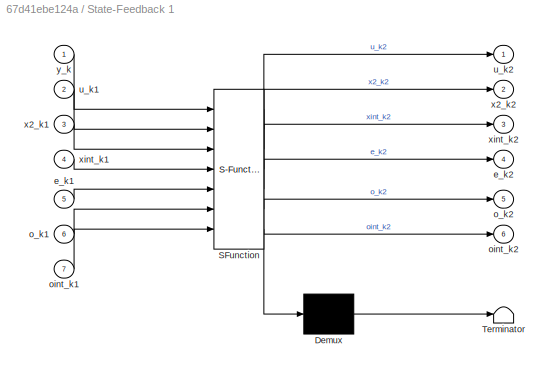
BLOCK [SubSystem] State-Feedback 1
  ErrorFcn = Stateflow.Translate.translate
  PermitHierarchicalResolution = ExplicitOnly
  Ports = [7, 6]
  RequestExecContextInheritance = off
  SFBlockType = MATLAB Function
  TreatAsAtomicUnit = on
  Variant = off
BLOCK [Demux] State-Feedback 1/ Demux 
  Outputs = 1
  Ports = [1, 1]
BLOCK [S-Function] State-Feedback 1/ SFunction 
  EnableBusSupport = on
  FunctionName = sf_sfun
  Parameters = B1,B2_x,B3,F1,F2,F3,F4,Fint1,Fint2,Fint3,Fint4,Lx,T
  PortCounts = [7 7]
  Ports = [7, 7]
  SFunctionDeploymentMode = off
  Tag = Stateflow S-Function state_feedback 6
BLOCK [Terminator] State-Feedback 1/ Terminator 
BLOCK [Inport] State-Feedback 1/e_k1
  IconDisplay = Port number
  Port = 5
BLOCK [Outport] State-Feedback 1/e_k2
  IconDisplay = Port number
  Port = 4
BLOCK [Inport] State-Feedback 1/o_k1
  IconDisplay = Port number
  Port = 6
BLOCK [Outport] State-Feedback 1/o_k2
  IconDisplay = Port number
  Port = 5
BLOCK [Inport] State-Feedback 1/oint_k1
  IconDisplay = Port number
  Port = 7
BLOCK [Outport] State-Feedback 1/oint_k2
  IconDisplay = Port number
  Port = 6
BLOCK [Inport] State-Feedback 1/u_k1
  IconDisplay = Port number
  Port = 2
BLOCK [Outport] State-Feedback 1/u_k2
  IconDisplay = Port number
BLOCK [Inport] State-Feedback 1/x2_k1
  IconDisplay = Port number
  Port = 3
BLOCK [Outport] State-Feedback 1/x2_k2
  IconDisplay = Port number
  Port = 2
BLOCK [Inport] State-Feedback 1/xint_k1
  IconDisplay = Port number
  Port = 4
BLOCK [Outport] State-Feedback 1/xint_k2
  IconDisplay = Port number
  Port = 3
BLOCK [Inport] State-Feedback 1/y_k
  IconDisplay = Port number
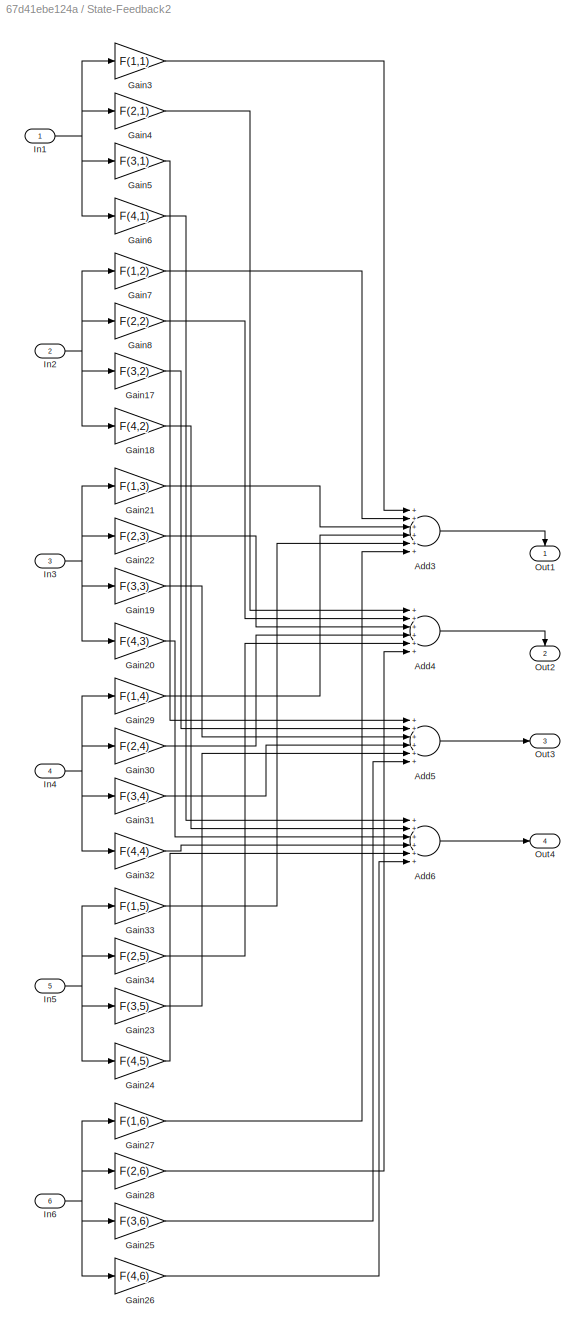
BLOCK [SubSystem] State-Feedback2
  Commented = on
  Ports = [6, 4]
  RequestExecContextInheritance = off
  Variant = off
BLOCK [Sum] State-Feedback2/Add3
  InputSameDT = off
  Inputs = ++++++
  OutDataTypeStr = Inherit: Inherit via internal rule
  Ports = [6, 1]
  SaturateOnIntegerOverflow = off
BLOCK [Sum] State-Feedback2/Add4
  InputSameDT = off
  Inputs = ++++++
  OutDataTypeStr = Inherit: Inherit via internal rule
  Ports = [6, 1]
  SaturateOnIntegerOverflow = off
BLOCK [Sum] State-Feedback2/Add5
  InputSameDT = off
  Inputs = ++++++
  OutDataTypeStr = Inherit: Inherit via internal rule
  Ports = [6, 1]
  SaturateOnIntegerOverflow = off
BLOCK [Sum] State-Feedback2/Add6
  InputSameDT = off
  Inputs = ++++++
  OutDataTypeStr = Inherit: Inherit via internal rule
  Ports = [6, 1]
  SaturateOnIntegerOverflow = off
BLOCK [Gain] State-Feedback2/Gain17
  Gain = F(3,2)
  OutDataTypeStr = Inherit: Inherit via internal rule
  ParamDataTypeStr = Inherit: Inherit via internal rule
  SaturateOnIntegerOverflow = off
BLOCK [Gain] State-Feedback2/Gain18
  Gain = F(4,2)
  OutDataTypeStr = Inherit: Inherit via internal rule
  ParamDataTypeStr = Inherit: Inherit via internal rule
  SaturateOnIntegerOverflow = off
BLOCK [Gain] State-Feedback2/Gain19
  Gain = F(3,3)
  OutDataTypeStr = Inherit: Inherit via internal rule
  ParamDataTypeStr = Inherit: Inherit via internal rule
  SaturateOnIntegerOverflow = off
BLOCK [Gain] State-Feedback2/Gain20
  Gain = F(4,3)
  OutDataTypeStr = Inherit: Inherit via internal rule
  ParamDataTypeStr = Inherit: Inherit via internal rule
  SaturateOnIntegerOverflow = off
BLOCK [Gain] State-Feedback2/Gain21
  Gain = F(1,3)
  OutDataTypeStr = Inherit: Inherit via internal rule
  ParamDataTypeStr = Inherit: Inherit via internal rule
  SaturateOnIntegerOverflow = off
BLOCK [Gain] State-Feedback2/Gain22
  Gain = F(2,3)
  OutDataTypeStr = Inherit: Inherit via internal rule
  ParamDataTypeStr = Inherit: Inherit via internal rule
  SaturateOnIntegerOverflow = off
BLOCK [Gain] State-Feedback2/Gain23
  Gain = F(3,5)
  OutDataTypeStr = Inherit: Inherit via internal rule
  ParamDataTypeStr = Inherit: Inherit via internal rule
  SaturateOnIntegerOverflow = off
BLOCK [Gain] State-Feedback2/Gain24
  Gain = F(4,5)
  OutDataTypeStr = Inherit: Inherit via internal rule
  ParamDataTypeStr = Inherit: Inherit via internal rule
  SaturateOnIntegerOverflow = off
BLOCK [Gain] State-Feedback2/Gain25
  Gain = F(3,6)
  OutDataTypeStr = Inherit: Inherit via internal rule
  ParamDataTypeStr = Inherit: Inherit via internal rule
  SaturateOnIntegerOverflow = off
BLOCK [Gain] State-Feedback2/Gain26
  Gain = F(4,6)
  OutDataTypeStr = Inherit: Inherit via internal rule
  ParamDataTypeStr = Inherit: Inherit via internal rule
  SaturateOnIntegerOverflow = off
BLOCK [Gain] State-Feedback2/Gain27
  Gain = F(1,6)
  OutDataTypeStr = Inherit: Inherit via internal rule
  ParamDataTypeStr = Inherit: Inherit via internal rule
  SaturateOnIntegerOverflow = off
BLOCK [Gain] State-Feedback2/Gain28
  Gain = F(2,6)
  OutDataTypeStr = Inherit: Inherit via internal rule
  ParamDataTypeStr = Inherit: Inherit via internal rule
  SaturateOnIntegerOverflow = off
BLOCK [Gain] State-Feedback2/Gain29
  Gain = F(1,4)
  OutDataTypeStr = Inherit: Inherit via internal rule
  ParamDataTypeStr = Inherit: Inherit via internal rule
  SaturateOnIntegerOverflow = off
BLOCK [Gain] State-Feedback2/Gain3
  Gain = F(1,1)
  OutDataTypeStr = Inherit: Inherit via internal rule
  ParamDataTypeStr = Inherit: Inherit via internal rule
  SaturateOnIntegerOverflow = off
BLOCK [Gain] State-Feedback2/Gain30
  Gain = F(2,4)
  OutDataTypeStr = Inherit: Inherit via internal rule
  ParamDataTypeStr = Inherit: Inherit via internal rule
  SaturateOnIntegerOverflow = off
BLOCK [Gain] State-Feedback2/Gain31
  Gain = F(3,4)
  OutDataTypeStr = Inherit: Inherit via internal rule
  ParamDataTypeStr = Inherit: Inherit via internal rule
  SaturateOnIntegerOverflow = off
BLOCK [Gain] State-Feedback2/Gain32
  Gain = F(4,4)
  OutDataTypeStr = Inherit: Inherit via internal rule
  ParamDataTypeStr = Inherit: Inherit via internal rule
  SaturateOnIntegerOverflow = off
BLOCK [Gain] State-Feedback2/Gain33
  Gain = F(1,5)
  OutDataTypeStr = Inherit: Inherit via internal rule
  ParamDataTypeStr = Inherit: Inherit via internal rule
  SaturateOnIntegerOverflow = off
BLOCK [Gain] State-Feedback2/Gain34
  Gain = F(2,5)
  OutDataTypeStr = Inherit: Inherit via internal rule
  ParamDataTypeStr = Inherit: Inherit via internal rule
  SaturateOnIntegerOverflow = off
BLOCK [Gain] State-Feedback2/Gain4
  Gain = F(2,1)
  OutDataTypeStr = Inherit: Inherit via internal rule
  ParamDataTypeStr = Inherit: Inherit via internal rule
  SaturateOnIntegerOverflow = off
BLOCK [Gain] State-Feedback2/Gain5
  Gain = F(3,1)
  OutDataTypeStr = Inherit: Inherit via internal rule
  ParamDataTypeStr = Inherit: Inherit via internal rule
  SaturateOnIntegerOverflow = off
BLOCK [Gain] State-Feedback2/Gain6
  Gain = F(4,1)
  OutDataTypeStr = Inherit: Inherit via internal rule
  ParamDataTypeStr = Inherit: Inherit via internal rule
  SaturateOnIntegerOverflow = off
BLOCK [Gain] State-Feedback2/Gain7
  Gain = F(1,2)
  OutDataTypeStr = Inherit: Inherit via internal rule
  ParamDataTypeStr = Inherit: Inherit via internal rule
  SaturateOnIntegerOverflow = off
BLOCK [Gain] State-Feedback2/Gain8
  Gain = F(2,2)
  OutDataTypeStr = Inherit: Inherit via internal rule
  ParamDataTypeStr = Inherit: Inherit via internal rule
  SaturateOnIntegerOverflow = off
BLOCK [Inport] State-Feedback2/In1
  IconDisplay = Port number
BLOCK [Inport] State-Feedback2/In2
  IconDisplay = Port number
  Port = 2
BLOCK [Inport] State-Feedback2/In3
  IconDisplay = Port number
  Port = 3
BLOCK [Inport] State-Feedback2/In4
  IconDisplay = Port number
  Port = 4
BLOCK [Inport] State-Feedback2/In5
  IconDisplay = Port number
  Port = 5
BLOCK [Inport] State-Feedback2/In6
  IconDisplay = Port number
  Port = 6
BLOCK [Outport] State-Feedback2/Out1
  IconDisplay = Port number
BLOCK [Outport] State-Feedback2/Out2
  IconDisplay = Port number
  Port = 2
BLOCK [Outport] State-Feedback2/Out3
  IconDisplay = Port number
  Port = 3
BLOCK [Outport] State-Feedback2/Out4
  IconDisplay = Port number
  Port = 4
BLOCK [Step] Step
  After = 0
  Commented = on
  SampleTime = 0
  Time = 0
BLOCK [Step] Step1
  After = 0
  Commented = on
  SampleTime = 0
  Time = 5
BLOCK [Step] Step2
  After = 0
  Commented = on
  SampleTime = 0
  Time = 5
BLOCK [Sum] Sum
  Commented = on
  IconShape = round
  InputSameDT = off
  Inputs = |-+
  OutDataTypeStr = Inherit: Inherit via internal rule
  Ports = [2, 1]
  SaturateOnIntegerOverflow = off
BLOCK [Sum] Sum1
  Commented = on
  IconShape = round
  InputSameDT = off
  Inputs = |-+
  OutDataTypeStr = Inherit: Inherit via internal rule
  Ports = [2, 1]
  SaturateOnIntegerOverflow = off
BLOCK [Sum] Sum2
  Commented = on
  IconShape = round
  InputSameDT = off
  Inputs = |-+
  OutDataTypeStr = Inherit: Inherit via internal rule
  Ports = [2, 1]
  SaturateOnIntegerOverflow = off
BLOCK [UnitDelay] Unit Delay
  InputProcessing = Elements as channels (sample based)
  SampleTime = T
BLOCK [UnitDelay] Unit Delay1
  InputProcessing = Elements as channels (sample based)
  SampleTime = T
BLOCK [UnitDelay] Unit Delay2
  InputProcessing = Elements as channels (sample based)
  SampleTime = T
BLOCK [UnitDelay] Unit Delay3
  InputProcessing = Elements as channels (sample based)
  SampleTime = T
BLOCK [UnitDelay] Unit Delay4
  InputProcessing = Elements as channels (sample based)
  SampleTime = T
BLOCK [UnitDelay] Unit Delay5
  InputProcessing = Elements as channels (sample based)
  SampleTime = T
BLOCK [Sum] w1
  Commented = on
  InputSameDT = off
  Inputs = +++
  OutDataTypeStr = Inherit: Inherit via internal rule
  Ports = [3, 1]
  SaturateOnIntegerOverflow = off
BLOCK [Sum] w2
  Commented = on
  InputSameDT = off
  Inputs = +++
  OutDataTypeStr = Inherit: Inherit via internal rule
  Ports = [3, 1]
  SaturateOnIntegerOverflow = off
BLOCK [Sum] w3
  Commented = on
  InputSameDT = off
  Inputs = +++
  OutDataTypeStr = Inherit: Inherit via internal rule
  Ports = [3, 1]
  SaturateOnIntegerOverflow = off
BLOCK [Sum] w4
  Commented = on
  InputSameDT = off
  Inputs = +++
  OutDataTypeStr = Inherit: Inherit via internal rule
  Ports = [3, 1]
  SaturateOnIntegerOverflow = off
BLOCK [Sum] w5
  InputSameDT = off
  OutDataTypeStr = Inherit: Inherit via internal rule
  Ports = [2, 1]
  SaturateOnIntegerOverflow = off
BLOCK [Sum] w6
  InputSameDT = off
  OutDataTypeStr = Inherit: Inherit via internal rule
  Ports = [2, 1]
  SaturateOnIntegerOverflow = off
BLOCK [Sum] w7
  InputSameDT = off
  OutDataTypeStr = Inherit: Inherit via internal rule
  Ports = [2, 1]
  SaturateOnIntegerOverflow = off
BLOCK [Sum] w8
  InputSameDT = off
  OutDataTypeStr = Inherit: Inherit via internal rule
  Ports = [2, 1]
  SaturateOnIntegerOverflow = off
LINE Add1:1 -> Gain2:1
LINE Add2:1 -> Gain1:1
LINE Add3:1 -> Gain3:1
LINE Add4:1 -> Gain20:1
LINE Add5:1 -> Gain4:1
LINE Add:1 -> Gain:1
LINE Constant1:1 -> w2:3
LINE Constant2:1 -> w1:3
LINE Constant3:1 -> w3:3
LINE Constant4:1 -> w8:2
LINE Constant5:1 -> w6:2
LINE Constant6:1 -> w5:2
LINE Constant7:1 -> w7:2
LINE Constant:1 -> w4:3
LINE Demux:1 -> w8:1
LINE Demux:2 -> w6:1
LINE Demux:3 -> w5:1
LINE Demux:4 -> w7:1
NET Discrete-Time Integrator1:1 -> Integral Control (Reference Input):2, Scope7:2
NET Discrete-Time Integrator2:1 -> Integral Control (Reference Input):3, Scope7:3
NET Discrete-Time Integrator:1 -> Integral Control (Reference Input):1, Scope7:1
LINE From10:1 -> Reduced Order Observer:5
LINE From11:1 -> Reduced Order Observer:4
LINE From12:1 -> Reduced Order Observer:6
LINE From13:1 -> Mux:1
LINE From14:1 -> Mux:2
LINE From15:1 -> Mux:3
LINE From1:1 -> Scope:2
LINE From2:1 -> Scope4:2
NET From3:1 -> Reduced Order Observer:2, State-Feedback :2
LINE From4:1 -> Scope5:2
NET From5:1 -> Reduced Order Observer:3, State-Feedback :3
LINE From6:1 -> Sum2:2
LINE From7:1 -> Sum1:2
LINE From8:1 -> Sum:2
LINE From9:1 -> Reduced Order Observer:7
NET From:1 -> Reduced Order Observer:1, State-Feedback :1
NET Gain10:1 -> Add1:2, Scope1:4
NET Gain11:1 -> Add1:1, Scope1:3
NET Gain12:1 -> Add:2, Scope1:2
LINE Gain13:1 -> Add2:1
LINE Gain14:1 -> Add2:2
LINE Gain15:1 -> Add2:4
LINE Gain16:1 -> Add2:3
LINE Gain17:1 -> Add5:2
LINE Gain18:1 -> Add5:4
LINE Gain19:1 -> Add5:3
NET Gain1:1 -> Angular Acceleration:3, Integrator4:1
NET Gain20:1 -> Angular Acceleration1:2, Integrator8:1
NET Gain21:1 -> Add3:1, Scope8:1
NET Gain2:1 -> Angular Acceleration:2, Integrator2:1
NET Gain3:1 -> Angular Acceleration1:1, Integrator6:1
NET Gain4:1 -> Angular Acceleration1:3, Integrator10:1
NET Gain5:1 -> Add4:2, Scope8:4
NET Gain6:1 -> Add4:1, Scope8:3
NET Gain7:1 -> Add3:2, Scope8:2
LINE Gain8:1 -> Add5:1
NET Gain9:1 -> Add:1, Scope1:1
NET Gain:1 -> Angular Acceleration:1, Integrator:1
LINE Integral Control (Reference Input)2/Add3:1 -> Integral Control (Reference Input)2/Out1:1
LINE Integral Control (Reference Input)2/Add4:1 -> Integral Control (Reference Input)2/Out2:1
LINE Integral Control (Reference Input)2/Add5:1 -> Integral Control (Reference Input)2/Out3:1
LINE Integral Control (Reference Input)2/Add6:1 -> Integral Control (Reference Input)2/Out4:1
LINE Integral Control (Reference Input)2/Gain17:1 -> Integral Control (Reference Input)2/Add5:2
LINE Integral Control (Reference Input)2/Gain18:1 -> Integral Control (Reference Input)2/Add6:2
LINE Integral Control (Reference Input)2/Gain19:1 -> Integral Control (Reference Input)2/Add3:3
LINE Integral Control (Reference Input)2/Gain20:1 -> Integral Control (Reference Input)2/Add4:3
LINE Integral Control (Reference Input)2/Gain21:1 -> Integral Control (Reference Input)2/Add5:3
LINE Integral Control (Reference Input)2/Gain22:1 -> Integral Control (Reference Input)2/Add6:3
LINE Integral Control (Reference Input)2/Gain3:1 -> Integral Control (Reference Input)2/Add3:1
LINE Integral Control (Reference Input)2/Gain4:1 -> Integral Control (Reference Input)2/Add4:1
LINE Integral Control (Reference Input)2/Gain5:1 -> Integral Control (Reference Input)2/Add5:1
LINE Integral Control (Reference Input)2/Gain6:1 -> Integral Control (Reference Input)2/Add6:1
LINE Integral Control (Reference Input)2/Gain7:1 -> Integral Control (Reference Input)2/Add3:2
LINE Integral Control (Reference Input)2/Gain8:1 -> Integral Control (Reference Input)2/Add4:2
NET Integral Control (Reference Input)2/In1:1 -> Integral Control (Reference Input)2/Gain3:1, Integral Control (Reference Input)2/Gain4:1, Integral Control (Reference Input)2/Gain5:1, Integral Control (Reference Input)2/Gain6:1
NET Integral Control (Reference Input)2/In2:1 -> Integral Control (Reference Input)2/Gain17:1, Integral Control (Reference Input)2/Gain18:1, Integral Control (Reference Input)2/Gain7:1, Integral Control (Reference Input)2/Gain8:1
NET Integral Control (Reference Input)2/In3:1 -> Integral Control (Reference Input)2/Gain19:1, Integral Control (Reference Input)2/Gain20:1, Integral Control (Reference Input)2/Gain21:1, Integral Control (Reference Input)2/Gain22:1
NET Integral Control (Reference Input):1 -> Scope2:1, w1:1
NET Integral Control (Reference Input):2 -> Scope2:2, w2:1
NET Integral Control (Reference Input):3 -> Scope2:3, w3:1
NET Integral Control (Reference Input):4 -> Scope2:4, w4:1
NET Integrator10:1 -> Angular Velocity1:3, Integrator11:1
NET Integrator11:1 -> Angular Position2:3, Goto17:1
NET Integrator1:1 -> Angular Position1:1, Angular Position:1, Goto5:1
NET Integrator2:1 -> Angular Velocity:2, Goto8:1, Integrator3:1
NET Integrator3:1 -> Angular Position1:2, Angular Position:2, Goto9:1
NET Integrator4:1 -> Angular Velocity:3, Goto6:1, Integrator5:1
NET Integrator5:1 -> Angular Position1:3, Angular Position:3, Goto7:1
NET Integrator6:1 -> Angular Velocity1:1, Integrator7:1
NET Integrator7:1 -> Angular Position2:1, Goto15:1
NET Integrator8:1 -> Angular Velocity1:2, Integrator9:1
NET Integrator9:1 -> Angular Position2:2, Goto19:1
NET Integrator:1 -> Angular Velocity:1, Goto4:1, Integrator1:1
NET Mux:1 -> Scope11:1, State-Feedback 1:1
NET Reduced Order Observer/-L :1 -> Reduced Order Observer/Add6:1, Reduced Order Observer/Scope1:1
NET Reduced Order Observer/-L :2 -> Reduced Order Observer/Add7:1, Reduced Order Observer/Scope1:2
NET Reduced Order Observer/-L :3 -> Reduced Order Observer/Add8:1, Reduced Order Observer/Scope1:3
NET Reduced Order Observer/Add3:1 -> Reduced Order Observer/Discrete-Time Integrator1:1, Reduced Order Observer/Scope:1
NET Reduced Order Observer/Add4:1 -> Reduced Order Observer/Discrete-Time Integrator2:1, Reduced Order Observer/Scope:2
NET Reduced Order Observer/Add5:1 -> Reduced Order Observer/Discrete-Time Integrator3:1, Reduced Order Observer/Scope:3
NET Reduced Order Observer/Add6:1 -> Reduced Order Observer/LA12:1, Reduced Order Observer/Out1:1, Reduced Order Observer/Scope2:1
NET Reduced Order Observer/Add7:1 -> Reduced Order Observer/LA12:2, Reduced Order Observer/Out2:1, Reduced Order Observer/Scope2:2
NET Reduced Order Observer/Add8:1 -> Reduced Order Observer/LA12:3, Reduced Order Observer/Out3:1, Reduced Order Observer/Scope2:3
LINE Reduced Order Observer/B2:1 -> Reduced Order Observer/Add3:1
LINE Reduced Order Observer/B2:2 -> Reduced Order Observer/Add4:1
LINE Reduced Order Observer/B2:3 -> Reduced Order Observer/Add5:1
LINE Reduced Order Observer/Discrete-Time Integrator1:1 -> Reduced Order Observer/Add6:2
LINE Reduced Order Observer/Discrete-Time Integrator2:1 -> Reduced Order Observer/Add7:2
LINE Reduced Order Observer/Discrete-Time Integrator3:1 -> Reduced Order Observer/Add8:2
LINE Reduced Order Observer/LA12:1 -> Reduced Order Observer/Add3:2
LINE Reduced Order Observer/LA12:2 -> Reduced Order Observer/Add4:2
LINE Reduced Order Observer/LA12:3 -> Reduced Order Observer/Add5:2
LINE Reduced Order Observer/u1:1 -> Reduced Order Observer/B2:1
LINE Reduced Order Observer/u2:1 -> Reduced Order Observer/B2:2
LINE Reduced Order Observer/u3:1 -> Reduced Order Observer/B2:3
LINE Reduced Order Observer/u4:1 -> Reduced Order Observer/B2:4
LINE Reduced Order Observer/x1:1 -> Reduced Order Observer/-L :1
LINE Reduced Order Observer/x2:1 -> Reduced Order Observer/-L :2
LINE Reduced Order Observer/x3:1 -> Reduced Order Observer/-L :3
NET Reduced Order Observer:1 -> Scope:1, State-Feedback :4
NET Reduced Order Observer:2 -> Scope4:1, State-Feedback :5
NET Reduced Order Observer:3 -> Scope5:1, State-Feedback :6
NET State-Feedback 1:1 -> Demux:1, Scope10:1, Unit Delay:1
NET State-Feedback 1:2 -> Scope12:1, Unit Delay1:1
LINE State-Feedback 1:3 -> Unit Delay5:1
LINE State-Feedback 1:4 -> Unit Delay2:1
LINE State-Feedback 1:5 -> Unit Delay3:1
LINE State-Feedback 1:6 -> Unit Delay4:1
NET State-Feedback :1 -> Scope3:1, w1:2
NET State-Feedback :2 -> Scope3:2, w2:2
NET State-Feedback :3 -> Scope3:3, w3:2
NET State-Feedback :4 -> Scope3:4, w4:2
LINE State-Feedback2/Add3:1 -> State-Feedback2/Out1:1
LINE State-Feedback2/Add4:1 -> State-Feedback2/Out2:1
LINE State-Feedback2/Add5:1 -> State-Feedback2/Out3:1
LINE State-Feedback2/Add6:1 -> State-Feedback2/Out4:1
LINE State-Feedback2/Gain17:1 -> State-Feedback2/Add5:2
LINE State-Feedback2/Gain18:1 -> State-Feedback2/Add6:2
LINE State-Feedback2/Gain19:1 -> State-Feedback2/Add5:3
LINE State-Feedback2/Gain20:1 -> State-Feedback2/Add6:3
LINE State-Feedback2/Gain21:1 -> State-Feedback2/Add3:3
LINE State-Feedback2/Gain22:1 -> State-Feedback2/Add4:3
LINE State-Feedback2/Gain23:1 -> State-Feedback2/Add5:5
LINE State-Feedback2/Gain24:1 -> State-Feedback2/Add6:5
LINE State-Feedback2/Gain25:1 -> State-Feedback2/Add5:6
LINE State-Feedback2/Gain26:1 -> State-Feedback2/Add6:6
LINE State-Feedback2/Gain27:1 -> State-Feedback2/Add3:6
LINE State-Feedback2/Gain28:1 -> State-Feedback2/Add4:6
LINE State-Feedback2/Gain29:1 -> State-Feedback2/Add3:4
LINE State-Feedback2/Gain30:1 -> State-Feedback2/Add4:4
LINE State-Feedback2/Gain31:1 -> State-Feedback2/Add5:4
LINE State-Feedback2/Gain32:1 -> State-Feedback2/Add6:4
LINE State-Feedback2/Gain33:1 -> State-Feedback2/Add3:5
LINE State-Feedback2/Gain34:1 -> State-Feedback2/Add4:5
LINE State-Feedback2/Gain3:1 -> State-Feedback2/Add3:1
LINE State-Feedback2/Gain4:1 -> State-Feedback2/Add4:1
LINE State-Feedback2/Gain5:1 -> State-Feedback2/Add5:1
LINE State-Feedback2/Gain6:1 -> State-Feedback2/Add6:1
LINE State-Feedback2/Gain7:1 -> State-Feedback2/Add3:2
LINE State-Feedback2/Gain8:1 -> State-Feedback2/Add4:2
NET State-Feedback2/In1:1 -> State-Feedback2/Gain3:1, State-Feedback2/Gain4:1, State-Feedback2/Gain5:1, State-Feedback2/Gain6:1
NET State-Feedback2/In2:1 -> State-Feedback2/Gain17:1, State-Feedback2/Gain18:1, State-Feedback2/Gain7:1, State-Feedback2/Gain8:1
NET State-Feedback2/In3:1 -> State-Feedback2/Gain19:1, State-Feedback2/Gain20:1, State-Feedback2/Gain21:1, State-Feedback2/Gain22:1
NET State-Feedback2/In4:1 -> State-Feedback2/Gain29:1, State-Feedback2/Gain30:1, State-Feedback2/Gain31:1, State-Feedback2/Gain32:1
NET State-Feedback2/In5:1 -> State-Feedback2/Gain23:1, State-Feedback2/Gain24:1, State-Feedback2/Gain33:1, State-Feedback2/Gain34:1
NET State-Feedback2/In6:1 -> State-Feedback2/Gain25:1, State-Feedback2/Gain26:1, State-Feedback2/Gain27:1, State-Feedback2/Gain28:1
LINE Step1:1 -> Sum1:1
LINE Step2:1 -> Sum:1
LINE Step:1 -> Sum2:1
LINE Sum1:1 -> Discrete-Time Integrator1:1
LINE Sum2:1 -> Discrete-Time Integrator:1
LINE Sum:1 -> Discrete-Time Integrator2:1
NET Unit Delay1:1 -> Scope12:2, State-Feedback 1:3
LINE Unit Delay2:1 -> State-Feedback 1:5
LINE Unit Delay3:1 -> State-Feedback 1:6
LINE Unit Delay4:1 -> State-Feedback 1:7
LINE Unit Delay5:1 -> State-Feedback 1:4
LINE Unit Delay:1 -> State-Feedback 1:2
NET w1:1 -> Gain11:1, Gain16:1, Goto2:1, Scope6:3
NET w2:1 -> Gain12:1, Gain14:1, Goto1:1, Scope6:2
NET w3:1 -> Gain10:1, Gain15:1, Goto3:1, Scope6:4
NET w4:1 -> Gain13:1, Gain9:1, Goto:1, Scope6:1
NET w5:1 -> Gain19:1, Gain6:1, Scope9:3
NET w6:1 -> Gain17:1, Gain7:1, Scope9:2
NET w7:1 -> Gain18:1, Gain5:1, Scope9:4
NET w8:1 -> Gain21:1, Gain8:1, Scope9:1
note: NET lines group one-source signal fan-out (src -> all destinations, sorted); 1:1 wires keep LINE
CHART State-Feedback
 states=1 transitions=1
  STATE_LABEL 'eML_blk_kernel()'
  STATE_LABEL 'SCRIPT:\nfunction [w1,w2,w3,w4] = F_matrix(x1, x2, x3, x4, x5, x6, F)\nx=[x1;\n    x2;\n    x3;\n    x4;\n    x5;\n    x6];\n\nw=F*x;\n\nw1=w(1);\nw2=w(2);\nw3=w(3);\nw4=w(4);'
CHART Integral Control
 (Reference Input) states=1 transitions=1
  STATE_LABEL 'eML_blk_kernel()'
  STATE_LABEL 'SCRIPT:\nfunction [w1,w2,w3,w4] = FI_matrix(xI_1, xI_2, xI_3,FI)\nxI=[xI_1;\n    xI_2;\n    xI_3];\n\nw=FI*xI;\n\nw1=w(1);\nw2=w(2);\nw3=w(3);\nw4=w(4);'
CHART Reduced Order Observer/-L
 states=1 transitions=1
  STATE_LABEL 'eML_blk_kernel()'
  STATE_LABEL 'SCRIPT:\nfunction [a,b,c] = minusL_matrix(x1, x2, x3, Lobs)\nx=[x1;\n    x2;\n    x3];\n\nabc=-Lobs*x;\n\na=abc(1);\nb=abc(2);\nc=abc(3);'
CHART Reduced Order Observer/B2 states=1 transitions=1
  STATE_LABEL 'eML_blk_kernel()'
  STATE_LABEL 'SCRIPT:\nfunction [a, b, c] = B2_matrix(u1, u2, u3, u4, B2)\nu=[u1;\n    u2;\n    u3;\n    u4];\n\nabc=B2*u;\n\na=abc(1);\nb=abc(2);\nc=abc(3);\n'
CHART Reduced Order Observer/LA12 states=1 transitions=1
  STATE_LABEL 'eML_blk_kernel()'
  STATE_LABEL 'SCRIPT:\nfunction [a,b,c] = LA12_matrix(x1_est, x2_est, x3_est, Lobs, A12)\nx=[x1_est;\n    x2_est;\n    x3_est];\n\nabc=Lobs*A12*x;\n\na=abc(1);\nb=abc(2);\nc=abc(3);'
CHART State-Feedback
1 states=1 transitions=1
  STATE_LABEL 'eML_blk_kernel()'
  STATE_LABEL 'SCRIPT:\nfunction [u_k2, x2_k2, xint_k2, e_k2, o_k2, oint_k2]=blablabla(y_k,u_k1, x2_k1, xint_k1, e_k1, o_k1, oint_k1,T,Lx,B1,B2_x,B3,F1,F2,F3,F4,Fint1,Fint2,Fint3,Fint4)\n    r_k \t= [0.0, 0.0, 0.0];\n    xint_k = [ 0.0, 0.0, 0.0 ];\n\tx2_k = [ 0.0, 0.0, 0.0 ];\n\to_k = [ 0.0, 0.0, 0.0 ];\n\toint_k = [ 0.0, 0.0, 0.0 ];\n\te_k = [ 0.0, 0.0, 0.0 ];\n    u_k2 \t= [0.0, 0.0, 0.0, 0.0];\n    x2_k2 \t= [0.0, 0.0, 0.0]...<+2411ch>'
